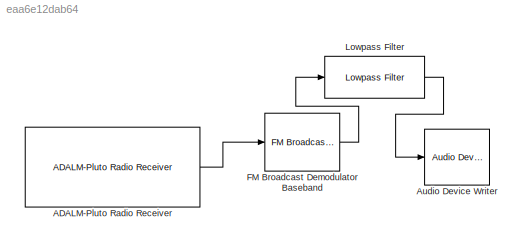
MODEL slx_eaa6e12dab64
KIND model
CONFIG AbsTol = auto
CONFIG EnableMultiTasking = off
CONFIG FixedStep = auto
CONFIG MaxStep = auto
CONFIG MinStep = auto
CONFIG RelTol = 1e-3
CONFIG SampleTimeConstraint = Unconstrained
CONFIG SolverName = VariableStepAuto
CONFIG StartTime = 0.0
CONFIG StopTime = 1000
BLOCK [Reference] ADALM-Pluto Radio Receiver  REF=plutoradiolib/ADALM-Pluto Radio
Receiver
  SourceBlock = plutoradiolib/ADALM-Pluto Radio\nReceiver
  SourceType = comm.SDRRxPluto
BLOCK [Reference] Audio Device Writer  REF=dspsnks4/Audio Device
Writer
  SourceBlock = dspsnks4/Audio Device\nWriter
  SourceType = Audio Device Writer
BLOCK [Reference] FM Broadcast Demodulator Baseband  REF=commanabbnd3/FM Broadcast
Demodulator
Baseband
  SourceBlock = commanabbnd3/FM Broadcast\nDemodulator\nBaseband
  SourceType = FM Broadcast Demodulator Baseband
BLOCK [Reference] Lowpass Filter  REF=dspfdesign/Lowpass Filter
  SourceBlock = dspfdesign/Lowpass Filter
  SourceType = dsp.simulink.LowpassFilter
LINE ADALM-Pluto Radio Receiver:1 -> FM Broadcast Demodulator Baseband:1
LINE FM Broadcast Demodulator Baseband:1 -> Lowpass Filter:1
LINE Lowpass Filter:1 -> Audio Device Writer:1
